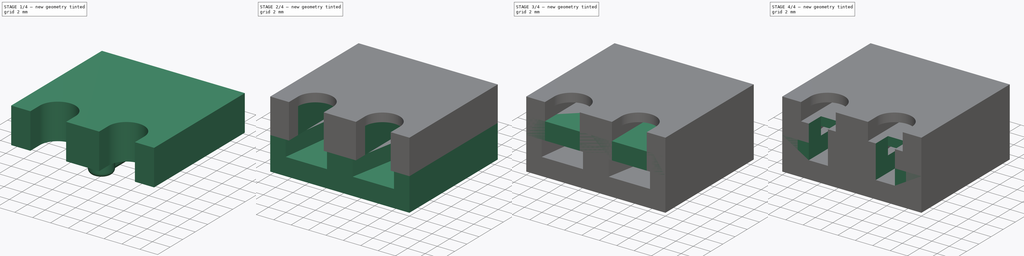
[diagram: build sequence overview — one tinted view per stage of 4, left to right]
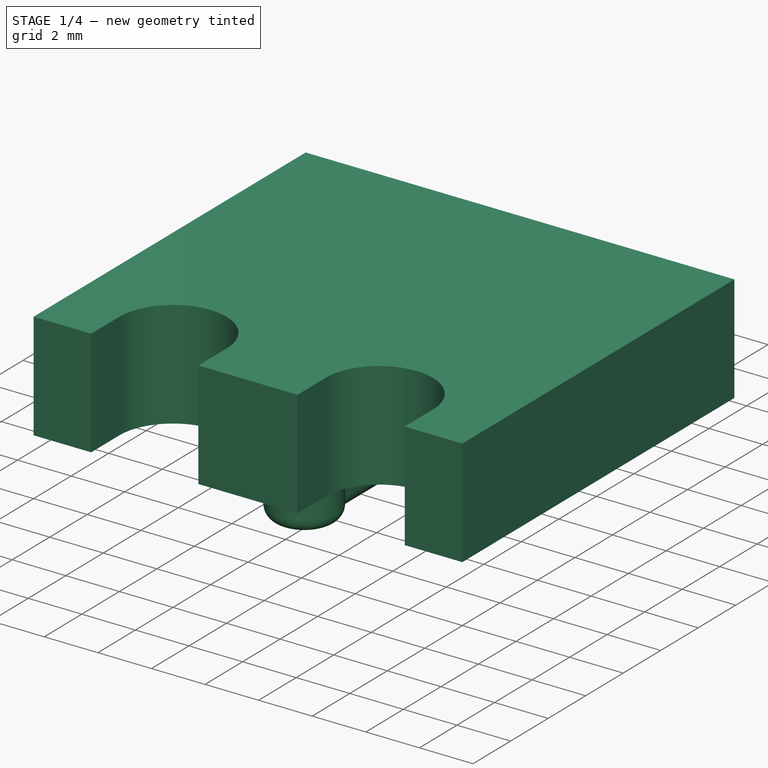
[diagram: stage 1 of 4 — iso view after this stage's code; geometry added in this stage tinted green]
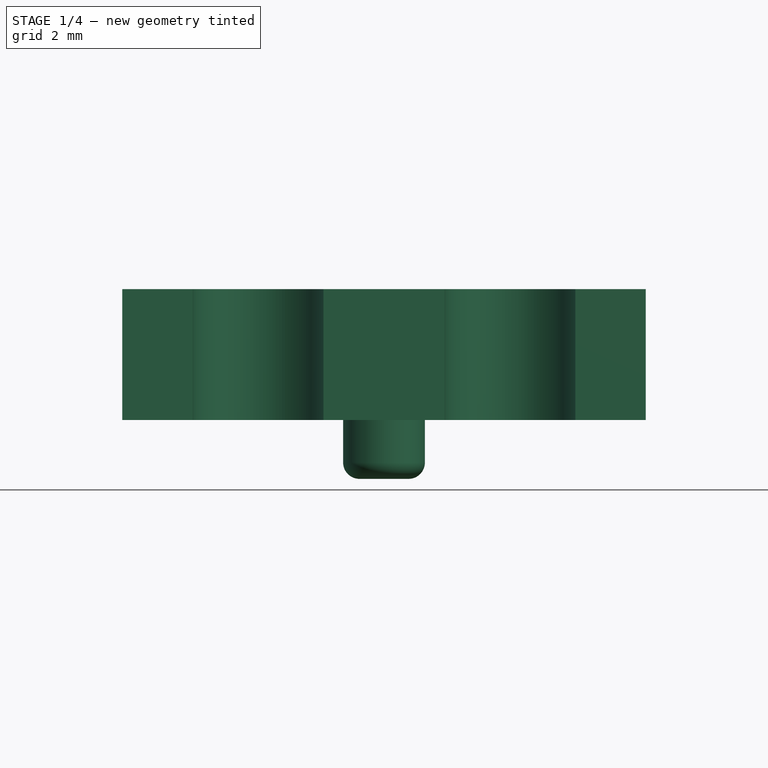
[diagram: stage 1 of 4 — front view after this stage's code; geometry added in this stage tinted green]
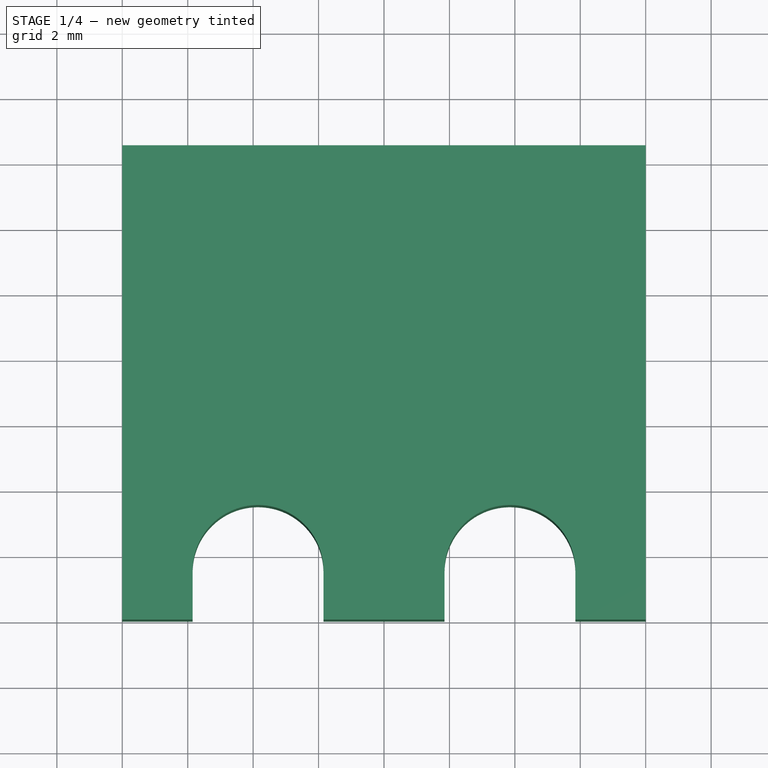
[diagram: stage 1 of 4 — top view after this stage's code; geometry added in this stage tinted green]
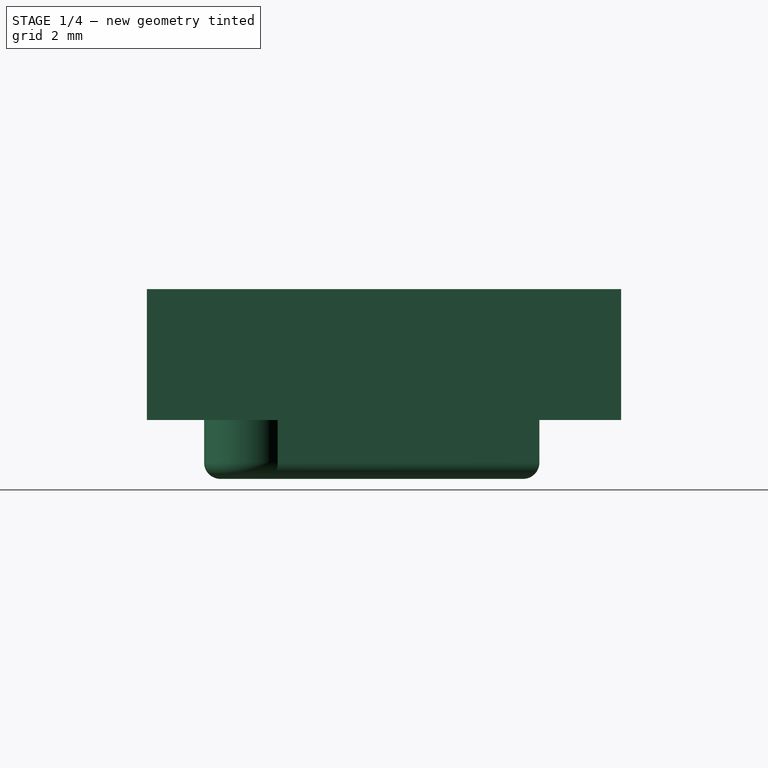
[diagram: stage 1 of 4 — right view after this stage's code; geometry added in this stage tinted green]
FCSTD DOCUMENT  (FreeCAD 2023.131R26244 +5365 (Git))
Label: Mini Blade Fuse Holder
License: All rights reserved
LicenseURL: http://en.wikipedia.org/wiki/All_rights_reserved
objects: Sketcher::SketchObject×12, PartDesign::Pad×6, PartDesign::Pocket×6, PartDesign::Body×4, PartDesign::Fillet×2, Spreadsheet::Sheet×1
note: 70 computed .brp shape members not serialized (recipe doc carries the construction recipe); baked Part::Feature solids carry a one-line shape summary decoded from their .brp

FEATURE [PartDesign::Body] Body002  label="Bottom Large Gauge"
  AutoGroupSolids = false
  ClaimAllChildren = false
  ExportMode = 0
  Group = -> [Sketch006,Pad003,Sketch007,Pocket003]
  InvalidShape = false
  Origin = -> Origin002
  Tip = -> Pocket003
  TreeRank = 27
  ValidateShape = true
  _ExportChildren = -> [Pad003,Pocket003]
  _GroupVersion = 1
FEATURE [Sketcher::SketchObject] Sketch008
  ArcFitTolerance = 1e-06
  AttachmentSupport = -> [XY_Plane003]
  ExternalBSplineMaxDegree = 5
  ExternalBSplineTolerance = 0.0001
  FullyConstrained = true
  InternalTolerance = 1e-06
  InvalidShape = false
  MakeInternals = false
  MapMode = 5
  Support = -> [XY_Plane003]
  TreeRank = 29
  ValidateShape = true
  expr: Constraints[10] = <<Parameters>>.connector_length
  expr: Constraints[8] = <<Parameters>>.width
  sketch-geometry (4):
    g0: LineSegment StartX=-8 StartY=0 StartZ=0 EndX=8 EndY=0 EndZ=0
    g1: LineSegment StartX=8 StartY=0 StartZ=0 EndX=8 EndY=14.5 EndZ=0
    g2: LineSegment StartX=8 StartY=14.5 StartZ=0 EndX=-8 EndY=14.5 EndZ=0
    g3: LineSegment StartX=-8 StartY=14.5 StartZ=0 EndX=-8 EndY=0 EndZ=0
  constraints (11):
    c: Coincident(g0,g1)
    c: Coincident(g1,g2)
    c: Coincident(g2,g3)
    c: Coincident(g3,g0)
    c: Horizontal(g0)
    c: Horizontal(g2)
    c: Vertical(g1)
    c: Vertical(g3)
    c: DistanceX(g0,g0) = 16
    c: Symmetric(g0,g0,g-1)
    c: DistanceY(g0,g1) = 14.5
FEATURE [PartDesign::Pad] Pad004
  AddSubType = 0
  AlongSketchNormal = false
  AutoTaperInnerAngle = true
  CheckUpToFaceLimits = true
  ClaimChildren = false
  Direction = (0,0,1)
  Fit = 0
  FitJoin = 0
  InnerFit = 0
  InnerFitJoin = 0
  InvalidShape = false
  Length = 4
  Length2 = 100
  Linearize = true
  NewSolid = false
  Profile = -> Sketch008
  Suppress = false
  TaperInnerAngle = 0
  TaperInnerAngleRev = 0
  TreeRank = 30
  Type = 0
  ValidateShape = true
  _ProfileBasedVersion = 1
  expr: Length = <<Parameters>>.thickness * 2
FEATURE [Sketcher::SketchObject] Sketch009
  ArcFitTolerance = 1e-06
  AttachmentSupport = -> [XY_Plane003]
  ExternalBSplineMaxDegree = 5
  ExternalBSplineTolerance = 0.0001
  FullyConstrained = true
  InternalTolerance = 1e-06
  InvalidShape = false
  MakeInternals = false
  MapMode = 5
  Support = -> [XY_Plane003]
  TreeRank = 31
  ValidateShape = true
  sketch-geometry (4):
    g0: ArcOfCircle CenterX=0 CenterY=3 CenterZ=0 NormalX=0 NormalY=0 NormalZ=1 AngleXU=0 Radius=1.25 StartAngle=2.2143 EndAngle=7.21048
    g1: LineSegment StartX=-0.75 StartY=4 StartZ=0 EndX=-0.75 EndY=12 EndZ=0
    g2: LineSegment StartX=0.75 StartY=4 StartZ=0 EndX=0.75 EndY=12 EndZ=0
    g3: LineSegment StartX=0.75 StartY=12 StartZ=0 EndX=-0.75 EndY=12 EndZ=0
  constraints (13):
    c: PointOnObject(g0,g-2)
    c: Vertical(g1)
    c: Vertical(g2)
    c: Coincident(g3,g2)
    c: Coincident(g3,g1)
    c: Horizontal(g3)
    c: Coincident(g0,g2)
    c: Coincident(g0,g1)
    c: DistanceY(g0,g0) = 0
    c: Diameter(g0) = 2.5
    c: DistanceX(g1,g2) = 1.5
    c: DistanceY(g0,g2) = 8
    c: DistanceY(g-1,g0) = 3
FEATURE [PartDesign::Pad] Pad005
  AddSubType = 0
  AlongSketchNormal = false
  AutoTaperInnerAngle = true
  BaseFeature = -> Pad004
  CheckUpToFaceLimits = true
  ClaimChildren = false
  Direction = (0,0,1)
  Fit = 0
  FitJoin = 0
  InnerFit = 0
  InnerFitJoin = 0
  InvalidShape = false
  Length = 1.8
  Length2 = 100
  Linearize = true
  NewSolid = false
  Profile = -> Sketch009
  Reversed = true
  Suppress = false
  TaperInnerAngle = 0
  TaperInnerAngleRev = 0
  TreeRank = 32
  Type = 0
  ValidateShape = true
  _ProfileBasedVersion = 1
  expr: Length = <<Parameters>>.spade_height
FEATURE [PartDesign::Fillet] Fillet001
  AddSubType = 0
  Base = -> Pad005 [Face11]
  BaseFeature = -> Pad005
  InvalidShape = false
  NewSolid = false
  Radius = 0.5
  SupportTransform = false
  Suppress = false
  TreeRank = 33
  ValidateShape = true
FEATURE [Sketcher::SketchObject] Sketch010
  ArcFitTolerance = 1e-06
  AttachmentSupport = -> [XY_Plane003]
  ExternalBSplineMaxDegree = 5
  ExternalBSplineTolerance = 0.0001
  FullyConstrained = false
  InternalTolerance = 1e-06
  InvalidShape = false
  MakeInternals = false
  MapMode = 5
  Support = -> [XY_Plane003]
  TreeRank = 34
  ValidateShape = true
  sketch-geometry (8):
    g0: ArcOfCircle CenterX=-3.85 CenterY=1.5 CenterZ=0 NormalX=0 NormalY=0 NormalZ=1 AngleXU=0 Radius=2 StartAngle=2e-16 EndAngle=3.14159
    g1: ArcOfCircle CenterX=3.85 CenterY=1.5 CenterZ=0 NormalX=0 NormalY=0 NormalZ=1 AngleXU=0 Radius=2 StartAngle=0 EndAngle=3.14159
    g2: LineSegment StartX=-5.85 StartY=1.5 StartZ=0 EndX=-5.85 EndY=-3.2814 EndZ=0
    g3: LineSegment StartX=-1.85 StartY=1.5 StartZ=0 EndX=-1.85 EndY=-3.2814 EndZ=0
    g4: LineSegment StartX=1.85 StartY=1.5 StartZ=0 EndX=1.85 EndY=-3.2814 EndZ=0
    g5: LineSegment StartX=5.85 StartY=1.5 StartZ=0 EndX=5.85 EndY=-3.2814 EndZ=0
    g6: LineSegment StartX=-5.85 StartY=-3.2814 StartZ=0 EndX=-1.85 EndY=-3.2814 EndZ=0
    g7: LineSegment StartX=1.85 StartY=-3.2814 StartZ=0 EndX=5.85 EndY=-3.2814 EndZ=0
  constraints (23):
    c: Symmetric(g0,g1,g-2)
    c: DistanceX(g0,g1) = 7.7
    c: Equal(g0,g1)
    c: Diameter(g0) = 4
    c: Vertical(g2)
    c: Vertical(g3)
    c: Vertical(g4)
    c: Vertical(g5)
    c: Coincident(g6,g2)
    c: Coincident(g6,g3)
    c: Coincident(g7,g4)
    c: Coincident(g7,g5)
    c: Horizontal(g6)
    c: Horizontal(g7)
    c: Coincident(g0,g3)
    c: Coincident(g0,g2)
    c: Tangent(g1,g4) = -1.5708
    c: DistanceY(g3,g4) = 0
    c: Coincident(g5,g1)
    c: DistanceY(g0,g0) = 0
    c: DistanceY(g0,g0) = 0
    c: DistanceY(g1,g1) = 0
    c: DistanceY(g-1,g0) = 1.5
FEATURE [PartDesign::Pocket] Pocket004
  AddSubType = 1
  AutoTaperInnerAngle = true
  BaseFeature = -> Fillet001
  CheckUpToFaceLimits = true
  ClaimChildren = false
  Fit = 0
  FitJoin = 0
  InnerFit = 0
  InnerFitJoin = 0
  InvalidShape = false
  Length = 100
  Length2 = 100
  Linearize = true
  NewSolid = false
  Profile = -> Sketch010
  Suppress = false
  TaperInnerAngle = 0
  TaperInnerAngleRev = 0
  TreeRank = 35
  Type = 4
  ValidateShape = true
  _ProfileBasedVersion = 1
  _Version = 1
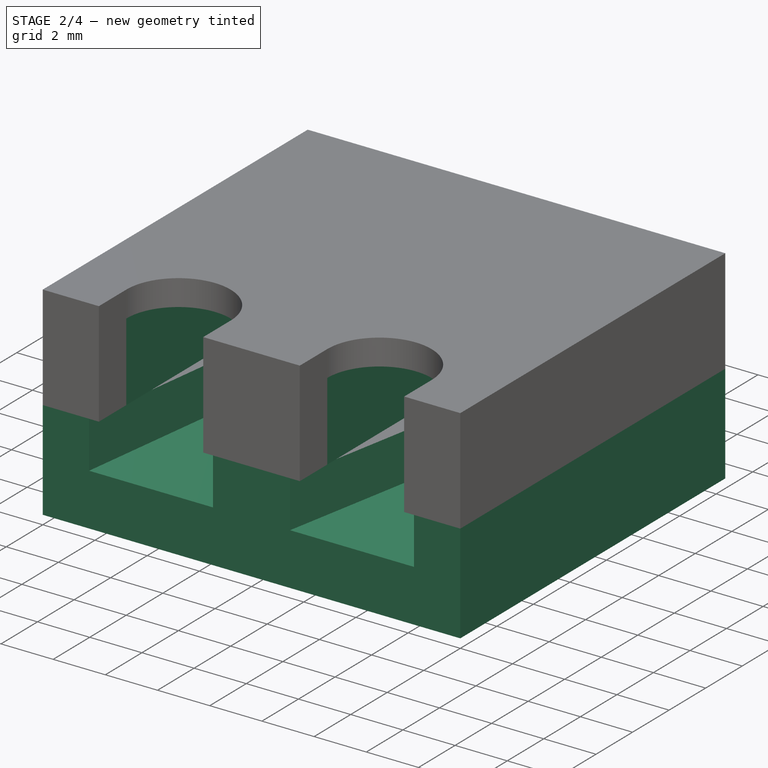
[diagram: stage 2 of 4 — iso view after this stage's code; geometry added in this stage tinted green]
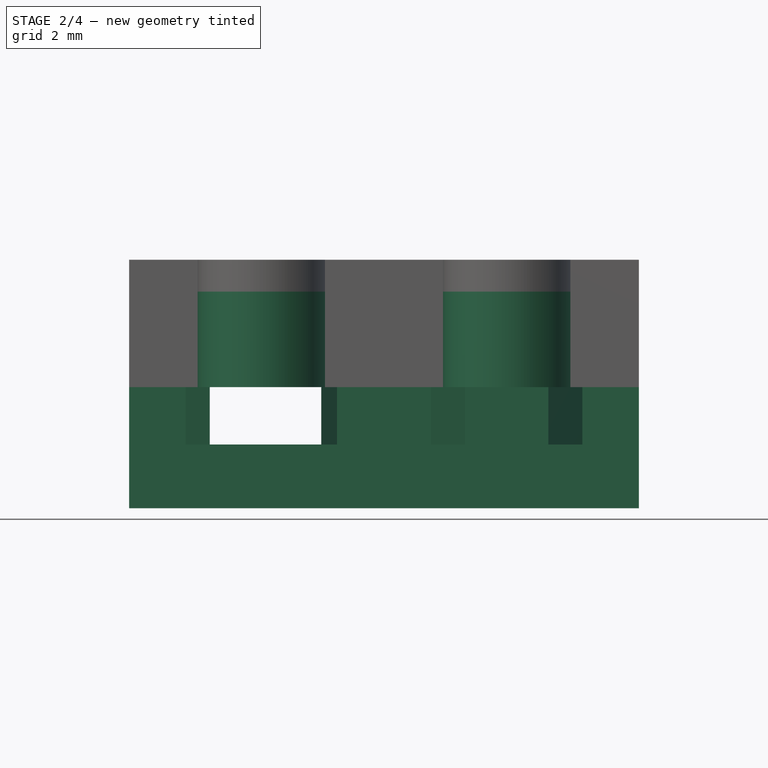
[diagram: stage 2 of 4 — front view after this stage's code; geometry added in this stage tinted green]
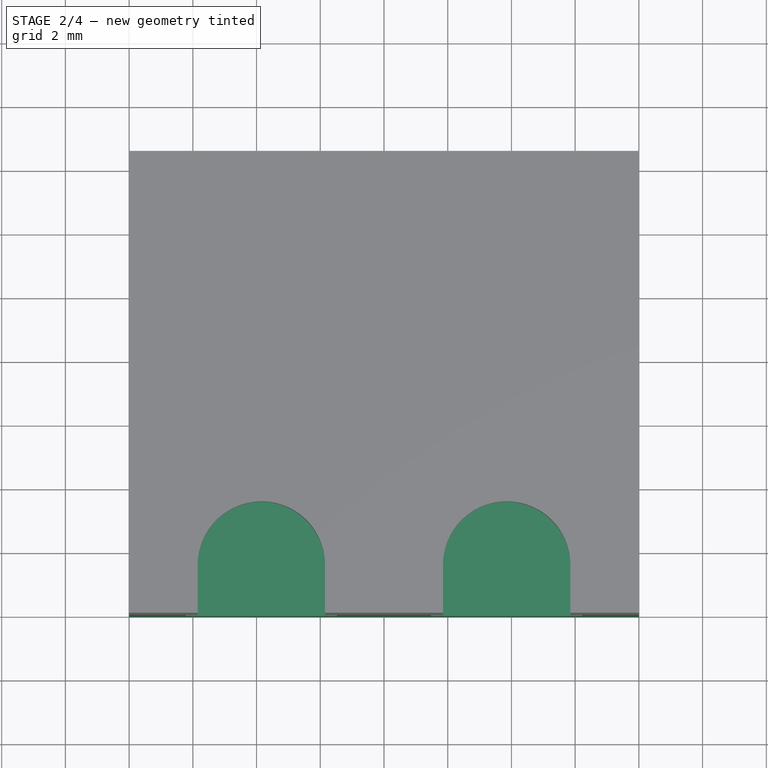
[diagram: stage 2 of 4 — top view after this stage's code; geometry added in this stage tinted green]
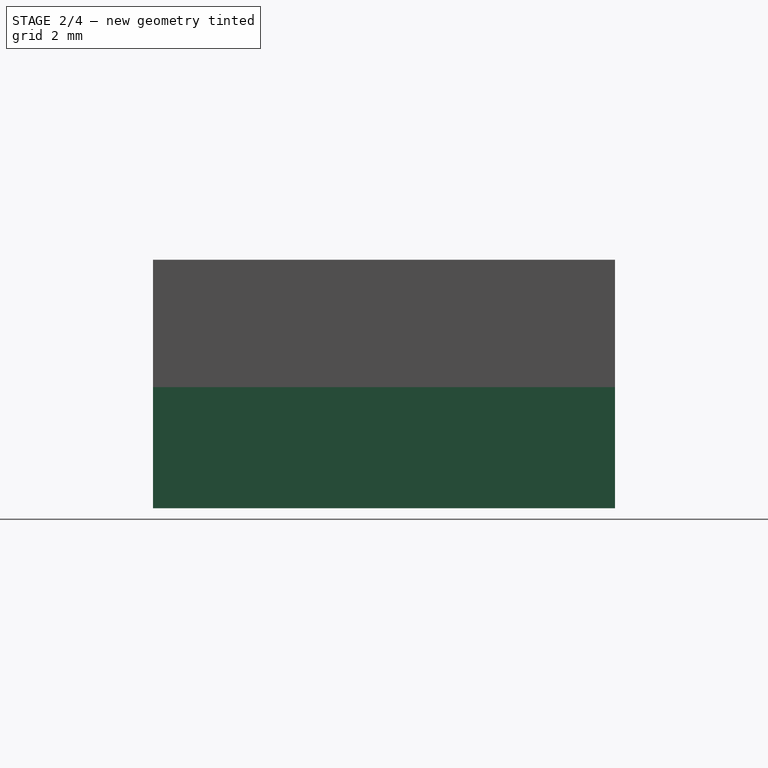
[diagram: stage 2 of 4 — right view after this stage's code; geometry added in this stage tinted green]
FEATURE [PartDesign::Body] Body001  label="Top Small Gauge"
  AutoGroupSolids = false
  ClaimAllChildren = false
  ExportMode = 0
  Group = -> [Sketch002,Pad001,Sketch003,Pad002,Fillet,Sketch004,Pocket001,Sketch005,Pocket002]
  InvalidShape = false
  Origin = -> Origin001
  Tip = -> Pocket002
  TreeRank = 26
  ValidateShape = true
  _ExportChildren = -> [Pad001,Pad002,Fillet,Pocket001,Pocket002]
  _GroupVersion = 1
FEATURE [Sketcher::SketchObject] Sketch006
  ArcFitTolerance = 1e-06
  AttachmentSupport = -> [XY_Plane002]
  ExternalBSplineMaxDegree = 5
  ExternalBSplineTolerance = 0.0001
  FullyConstrained = true
  InternalTolerance = 1e-06
  InvalidShape = false
  MakeInternals = false
  MapMode = 5
  Support = -> [XY_Plane002]
  TreeRank = 12
  ValidateShape = true
  expr: Constraints[10] = <<Parameters>>.width
  expr: Constraints[9] = <<Parameters>>.connector_length
  sketch-geometry (4):
    g0: LineSegment StartX=-8 StartY=0 StartZ=0 EndX=8 EndY=0 EndZ=0
    g1: LineSegment StartX=8 StartY=0 StartZ=0 EndX=8 EndY=14.5 EndZ=0
    g2: LineSegment StartX=8 StartY=14.5 StartZ=0 EndX=-8 EndY=14.5 EndZ=0
    g3: LineSegment StartX=-8 StartY=14.5 StartZ=0 EndX=-8 EndY=0 EndZ=0
  constraints (11):
    c: Coincident(g0,g1)
    c: Coincident(g1,g2)
    c: Coincident(g2,g3)
    c: Coincident(g3,g0)
    c: Horizontal(g0)
    c: Horizontal(g2)
    c: Vertical(g1)
    c: Vertical(g3)
    c: Symmetric(g0,g0,g-1)
    c: DistanceY(g0,g1) = 14.5
    c: DistanceX(g0,g0) = 16
FEATURE [PartDesign::Pad] Pad003
  AddSubType = 0
  AlongSketchNormal = false
  AutoTaperInnerAngle = true
  CheckUpToFaceLimits = true
  ClaimChildren = false
  Direction = (0,0,1)
  Fit = 0
  FitJoin = 0
  InnerFit = 0
  InnerFitJoin = 0
  InvalidShape = false
  Length = 3.8
  Length2 = 100
  Linearize = true
  NewSolid = false
  Profile = -> Sketch006
  Reversed = true
  Suppress = false
  TaperInnerAngle = 0
  TaperInnerAngleRev = 0
  TreeRank = 13
  Type = 0
  ValidateShape = true
  _ProfileBasedVersion = 1
  expr: Length = <<Parameters>>.spade_height + <<Parameters>>.thickness
FEATURE [Sketcher::SketchObject] Sketch007
  ArcFitTolerance = 1e-06
  AttachmentSupport = -> [XY_Plane002]
  ExternalBSplineMaxDegree = 5
  ExternalBSplineTolerance = 0.0001
  FullyConstrained = false
  InternalTolerance = 1e-06
  InvalidShape = false
  MakeInternals = false
  MapMode = 5
  Support = -> [XY_Plane002]
  TreeRank = 14
  ValidateShape = true
  expr: Constraints[16] = <<Parameters>>.connector_length
  expr: Constraints[17] = <<Parameters>>.spade_width
  expr: Constraints[18] = <<Parameters>>.spade_length
  expr: Constraints[20] = <<Parameters>>.wire_holder_length
  expr: Constraints[43] = <<Parameters>>.fuse_blade_distance
  sketch-geometry (22):
    g0: LineSegment StartX=-5.57963 StartY=14.5 StartZ=0 EndX=-5.57963 EndY=9 EndZ=0
    g1: LineSegment StartX=-5.57963 StartY=9 StartZ=0 EndX=-5.47022 EndY=5.75 EndZ=0
    g2: LineSegment StartX=-5.47022 StartY=5.75 StartZ=0 EndX=-6.225 EndY=0 EndZ=0
    g3: LineSegment StartX=-6.225 StartY=0 StartZ=0 EndX=-1.475 EndY=0 EndZ=0
    g4: LineSegment StartX=-1.475 StartY=0 StartZ=0 EndX=-1.97022 EndY=5.77814 EndZ=0
    g5: LineSegment StartX=-1.97022 StartY=5.77814 StartZ=0 EndX=-1.52963 EndY=9 EndZ=0
    g6: LineSegment StartX=-1.52963 StartY=9 StartZ=0 EndX=-1.52963 EndY=14.5 EndZ=0
    g7: LineSegment StartX=-5.57963 StartY=14.5 StartZ=0 EndX=-1.52963 EndY=14.5 EndZ=0
    g8: LineSegment StartX=1.475 StartY=0 StartZ=0 EndX=2.54126 EndY=5.70046 EndZ=0
    g9: LineSegment StartX=6.225 StartY=0 StartZ=0 EndX=5.15888 EndY=5.70049 EndZ=0
    g10: LineSegment StartX=1.475 StartY=0 StartZ=0 EndX=6.225 EndY=0 EndZ=0
    g11: LineSegment StartX=2.54126 StartY=5.70046 StartZ=0 EndX=1.82513 EndY=8.87247 EndZ=0
    g12: LineSegment StartX=5.15888 StartY=5.70049 StartZ=0 EndX=5.87513 EndY=8.87247 EndZ=0
    g13: LineSegment StartX=5.87513 StartY=8.87247 StartZ=0 EndX=5.87513 EndY=14.3725 EndZ=0
    g14: LineSegment StartX=1.82513 StartY=8.87247 StartZ=0 EndX=1.82513 EndY=14.3725 EndZ=0
    g15: LineSegment StartX=1.82513 StartY=14.3725 StartZ=0 EndX=5.87513 EndY=14.3725 EndZ=0
    g16: GeomPoint [constr] X=-3.85 Y=0 Z=0
    g17: GeomPoint [constr] X=3.85 Y=0 Z=0
    g18: ArcOfCircle CenterX=0 CenterY=3 CenterZ=0 NormalX=0 NormalY=0 NormalZ=1 AngleXU=0 Radius=1.25 StartAngle=2.2143 EndAngle=7.21048
    g19: LineSegment StartX=-0.75 StartY=4 StartZ=0 EndX=-0.75 EndY=12 EndZ=0
    g20: LineSegment StartX=0.75 StartY=4 StartZ=0 EndX=0.75 EndY=12 EndZ=0
    g21: LineSegment StartX=0.75 StartY=12 StartZ=0 EndX=-0.75 EndY=12 EndZ=0
  constraints (59):
    c: Vertical(g0)
    c: Coincident(g1,g0)
    c: Coincident(g2,g1)
    c: Coincident(g3,g2)
    c: Horizontal(g3)
    c: Coincident(g4,g3)
    c: Coincident(g5,g4)
    c: Coincident(g6,g5)
    c: Vertical(g6)
    c: Coincident(g7,g0)
    c: Coincident(g7,g6)
    c: Horizontal(g7)
    c: PointOnObject(g3,g-1)
    c: Equal(g0,g6)
    c: Equal(g1,g5)
    c: Equal(g2,g4)
    c: DistanceY(g-1,g6) = 14.5
    c: DistanceX(g0,g6) = 4.05
    c: DistanceY(g0,g0) = 5.5
    c: DistanceX(g1,g4) = 3.5
    c: DistanceY(g2,g1) = 5.75
    c: Coincident(g10,g8)
    c: Coincident(g10,g9)
    c: Horizontal(g10)
    c: Coincident(g11,g8)
    c: Coincident(g12,g9)
    c: Coincident(g13,g12)
    c: Vertical(g13)
    c: Coincident(g14,g11)
    c: Vertical(g14)
    c: Coincident(g15,g14)
    c: Coincident(g15,g13)
    c: Horizontal(g15)
    c: Equal(g7,g15)
    c: Equal(g0,g14)
    c: Equal(g6,g13)
    c: Equal(g1,g11)
    c: Equal(g5,g12)
    c: Equal(g2,g8)
    c: Equal(g4,g9)
    c: Equal(g3,g10)
    c: Symmetric(g2,g3,g16)
    c: Symmetric(g8,g9,g17)
    c: DistanceX(g16,g17) = 7.7
    c: Symmetric(g3,g8,g-1)
    c: PointOnObject(g18,g-2)
    c: Diameter(g18) = 2.5
    c: Vertical(g19)
    c: Vertical(g20)
    c: Coincident(g21,g20)
    c: Coincident(g21,g19)
    c: DistanceY(g20,g20) = 8
    c: DistanceX(g19,g20) = 1.5
    c: DistanceY(g-1,g18) = 3
    c: Horizontal(g21)
    c: Coincident(g18,g20)
    c: Coincident(g18,g19)
    c: DistanceY(g18,g18) = 0
    c: DistanceX(g2,g3) = 4.75
FEATURE [PartDesign::Pocket] Pocket003
  AddSubType = 1
  AutoTaperInnerAngle = true
  BaseFeature = -> Pad003
  CheckUpToFaceLimits = true
  ClaimChildren = false
  Fit = 0
  FitJoin = 0
  InnerFit = 0
  InnerFitJoin = 0
  InvalidShape = false
  Length = 1.8
  Length2 = 100
  Linearize = true
  NewSolid = false
  Profile = -> Sketch007
  Suppress = false
  TaperInnerAngle = 0
  TaperInnerAngleRev = 0
  TreeRank = 15
  Type = 0
  ValidateShape = true
  _ProfileBasedVersion = 1
  _Version = 1
  expr: Length = <<Parameters>>.spade_height
FEATURE [Sketcher::SketchObject] Sketch011
  ArcFitTolerance = 1e-06
  AttachmentSupport = -> [XY_Plane003]
  ExternalBSplineMaxDegree = 5
  ExternalBSplineTolerance = 0.0001
  FullyConstrained = false
  InternalTolerance = 1e-06
  InvalidShape = false
  MakeInternals = false
  MapMode = 5
  Support = -> [XY_Plane003]
  TreeRank = 36
  ValidateShape = true
  expr: Constraints[6] = <<Parameters>>.wire_holder_width
  expr: Constraints[7] = <<Parameters>>.fuse_blade_distance
  sketch-geometry (10):
    g0: ArcOfCircle CenterX=-3.85 CenterY=-0.720417 CenterZ=0 NormalX=0 NormalY=0 NormalZ=1 AngleXU=0 Radius=2 StartAngle=3.14159 EndAngle=6.28319
    g1: ArcOfCircle CenterX=3.85 CenterY=-0.720417 CenterZ=0 NormalX=0 NormalY=0 NormalZ=1 AngleXU=0 Radius=2 StartAngle=3.14159 EndAngle=6.28319
    g2: LineSegment [constr] StartX=-4.95 StartY=-2.39075 StartZ=0 EndX=-2.75 EndY=-2.39075 EndZ=0
    g3: ArcOfCircle CenterX=-3.85 CenterY=8.01764 CenterZ=0 NormalX=0 NormalY=0 NormalZ=1 AngleXU=0 Radius=2 StartAngle=3.74793e-08 EndAngle=3.14159
    g4: ArcOfCircle CenterX=3.85 CenterY=8.01764 CenterZ=0 NormalX=0 NormalY=0 NormalZ=1 AngleXU=0 Radius=2 StartAngle=6.28319 EndAngle=9.42478
    g5: LineSegment StartX=-5.85 StartY=-0.720417 StartZ=0 EndX=-5.85 EndY=8.01764 EndZ=0
    g6: LineSegment StartX=5.85 StartY=-0.720417 StartZ=0 EndX=5.85 EndY=8.01764 EndZ=0
    g7: LineSegment StartX=1.85 StartY=-0.720417 StartZ=0 EndX=1.85 EndY=8.01764 EndZ=0
    g8: LineSegment StartX=-1.85 StartY=-0.720417 StartZ=0 EndX=-1.85 EndY=8.01764 EndZ=0
    g9: LineSegment [constr] StartX=-4.11501 StartY=10 StartZ=0 EndX=3.62358 EndY=10.0048 EndZ=0
  constraints (28):
    c: Diameter(g0) = 4
    c: Equal(g0,g1)
    c: Symmetric(g0,g1,g-2)
    c: PointOnObject(g2,g0)
    c: PointOnObject(g2,g0)
    c: Horizontal(g2)
    c: DistanceX(g2,g2) = 2.2
    c: DistanceX(g0,g1) = 7.7
    c: Equal(g0,g3)
    c: Equal(g0,g4)
    c: Symmetric(g3,g4,g-2)
    c: Vertical(g6)
    c: Equal(g5,g7)
    c: Tangent(g3,g5) = 1.5708
    c: Coincident(g3,g8)
    c: Coincident(g0,g8)
    c: Coincident(g0,g5)
    c: Coincident(g4,g7)
    c: Coincident(g1,g6)
    c: Tangent(g1,g7) = 1.5708
    c: DistanceY(g0,g0) = 0
    c: DistanceY(g1,g1) = 0
    c: Coincident(g4,g6)
    c: Vertical(g8)
    c: Vertical(g5)
    c: PointOnObject(g9,g3)
    c: PointOnObject(g9,g4)
    c: DistanceY(g-1,g9) = 10
FEATURE [PartDesign::Pocket] Pocket005
  AddSubType = 1
  AutoTaperInnerAngle = true
  BaseFeature = -> Pocket004
  CheckUpToFaceLimits = true
  ClaimChildren = false
  Fit = 0
  FitJoin = 0
  InnerFit = 0
  InnerFitJoin = 0
  InvalidShape = false
  Length = 3
  Length2 = 100
  Linearize = true
  NewSolid = false
  Profile = -> Sketch011
  Reversed = true
  Suppress = false
  TaperInnerAngle = 0
  TaperInnerAngleRev = 0
  TreeRank = 37
  Type = 0
  ValidateShape = true
  _ProfileBasedVersion = 1
  _Version = 1
  expr: Length = <<Parameters>>.thickness / 2 * 3
FEATURE [PartDesign::Body] Body003  label="Top Large Gauge"
  AutoGroupSolids = false
  ClaimAllChildren = false
  ExportMode = 0
  Group = -> [Sketch008,Pad004,Sketch009,Pad005,Fillet001,Sketch010,Pocket004,Sketch011,Pocket005]
  InvalidShape = false
  Origin = -> Origin003
  Tip = -> Pocket005
  TreeRank = 38
  ValidateShape = true
  _ExportChildren = -> [Pad004,Pad005,Fillet001,Pocket004,Pocket005]
  _GroupVersion = 1
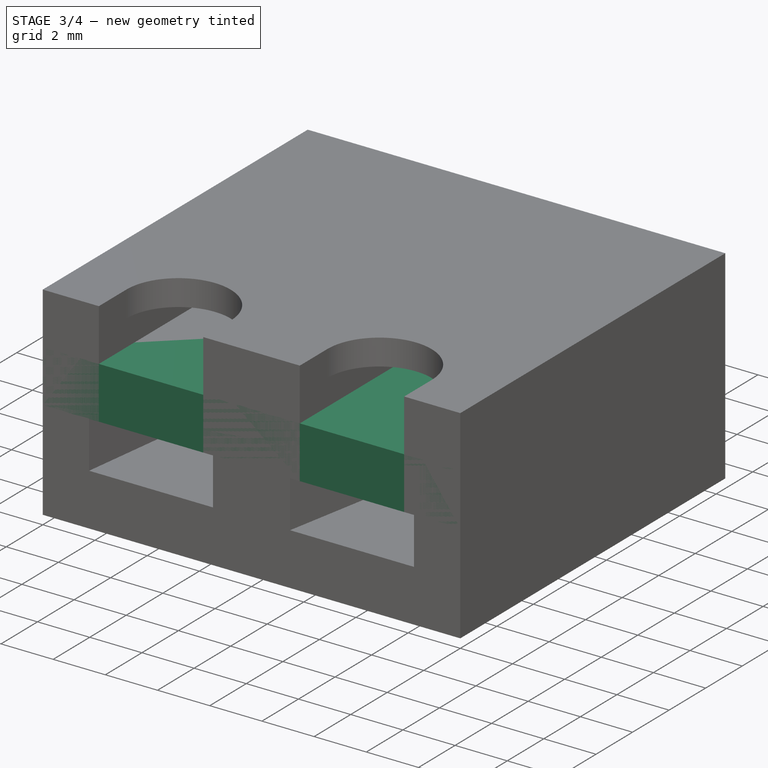
[diagram: stage 3 of 4 — iso view after this stage's code; geometry added in this stage tinted green]
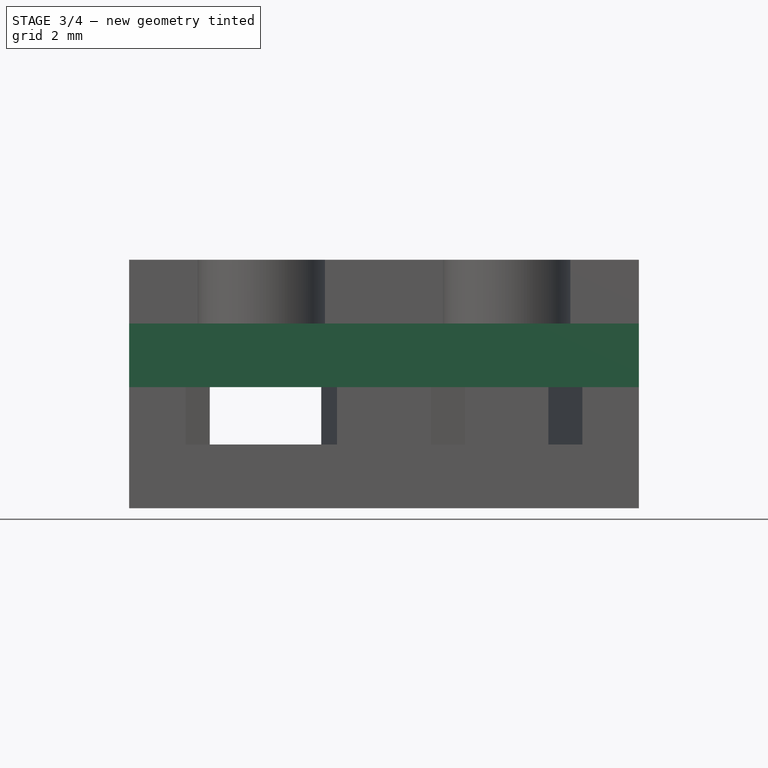
[diagram: stage 3 of 4 — front view after this stage's code; geometry added in this stage tinted green]
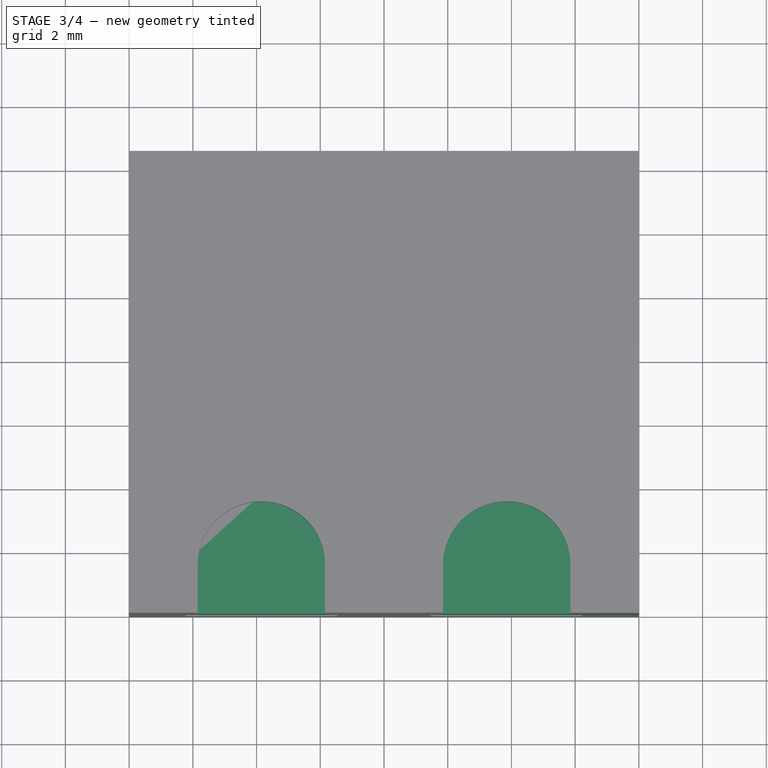
[diagram: stage 3 of 4 — top view after this stage's code; geometry added in this stage tinted green]
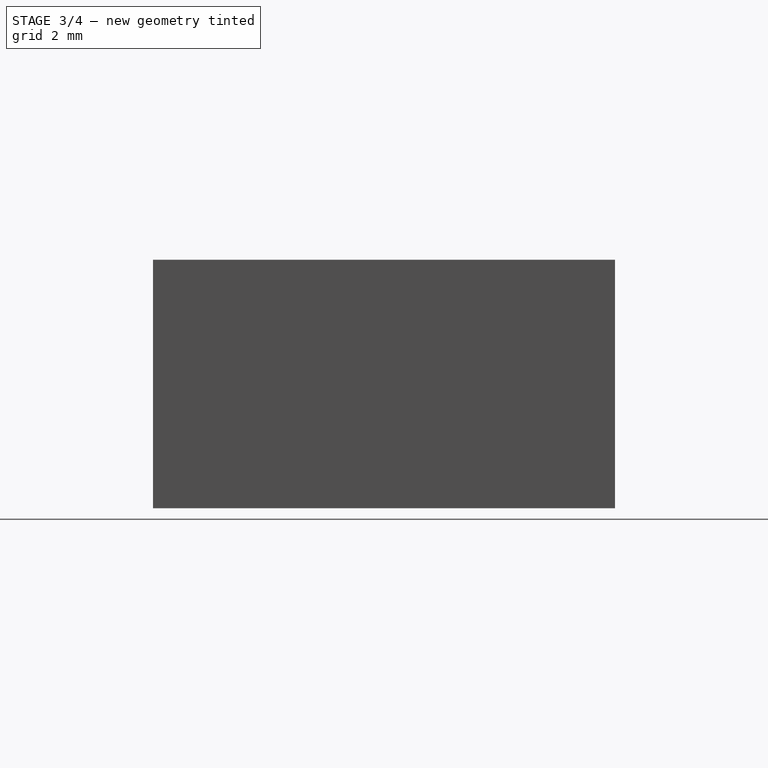
[diagram: stage 3 of 4 — right view after this stage's code; geometry added in this stage tinted green]
FEATURE [PartDesign::Body] Body  label="Bottom Small Gauge"
  AutoGroupSolids = false
  ClaimAllChildren = false
  ExportMode = 0
  Group = -> [Sketch,Pad,Sketch001,Pocket]
  InvalidShape = false
  Origin = -> Origin
  Tip = -> Pocket
  TreeRank = 11
  ValidateShape = true
  _ExportChildren = -> [Pad,Pocket]
  _GroupVersion = 1
FEATURE [Sketcher::SketchObject] Sketch002
  ArcFitTolerance = 1e-06
  AttachmentSupport = -> [XY_Plane001]
  ExternalBSplineMaxDegree = 5
  ExternalBSplineTolerance = 0.0001
  FullyConstrained = true
  InternalTolerance = 1e-06
  InvalidShape = false
  MakeInternals = false
  MapMode = 5
  Support = -> [XY_Plane001]
  TreeRank = 29
  ValidateShape = true
  expr: Constraints[10] = <<Parameters>>.connector_length
  expr: Constraints[8] = <<Parameters>>.width
  sketch-geometry (4):
    g0: LineSegment StartX=-8 StartY=0 StartZ=0 EndX=8 EndY=0 EndZ=0
    g1: LineSegment StartX=8 StartY=0 StartZ=0 EndX=8 EndY=14.5 EndZ=0
    g2: LineSegment StartX=8 StartY=14.5 StartZ=0 EndX=-8 EndY=14.5 EndZ=0
    g3: LineSegment StartX=-8 StartY=14.5 StartZ=0 EndX=-8 EndY=0 EndZ=0
  constraints (11):
    c: Coincident(g0,g1)
    c: Coincident(g1,g2)
    c: Coincident(g2,g3)
    c: Coincident(g3,g0)
    c: Horizontal(g0)
    c: Horizontal(g2)
    c: Vertical(g1)
    c: Vertical(g3)
    c: DistanceX(g0,g0) = 16
    c: Symmetric(g0,g0,g-1)
    c: DistanceY(g0,g1) = 14.5
FEATURE [PartDesign::Pad] Pad001
  AddSubType = 0
  AlongSketchNormal = false
  AutoTaperInnerAngle = true
  CheckUpToFaceLimits = true
  ClaimChildren = false
  Direction = (0,0,1)
  Fit = 0
  FitJoin = 0
  InnerFit = 0
  InnerFitJoin = 0
  InvalidShape = false
  Length = 2
  Length2 = 100
  Linearize = true
  NewSolid = false
  Profile = -> Sketch002
  Suppress = false
  TaperInnerAngle = 0
  TaperInnerAngleRev = 0
  TreeRank = 30
  Type = 0
  ValidateShape = true
  _ProfileBasedVersion = 1
  expr: Length = <<Parameters>>.thickness
FEATURE [Sketcher::SketchObject] Sketch003
  ArcFitTolerance = 1e-06
  AttachmentSupport = -> [XY_Plane001]
  ExternalBSplineMaxDegree = 5
  ExternalBSplineTolerance = 0.0001
  FullyConstrained = true
  InternalTolerance = 1e-06
  InvalidShape = false
  MakeInternals = false
  MapMode = 5
  Support = -> [XY_Plane001]
  TreeRank = 31
  ValidateShape = true
  sketch-geometry (4):
    g0: ArcOfCircle CenterX=0 CenterY=3 CenterZ=0 NormalX=0 NormalY=0 NormalZ=1 AngleXU=0 Radius=1.25 StartAngle=2.2143 EndAngle=7.21048
    g1: LineSegment StartX=-0.75 StartY=4 StartZ=0 EndX=-0.75 EndY=12 EndZ=0
    g2: LineSegment StartX=0.75 StartY=4 StartZ=0 EndX=0.75 EndY=12 EndZ=0
    g3: LineSegment StartX=0.75 StartY=12 StartZ=0 EndX=-0.75 EndY=12 EndZ=0
  constraints (13):
    c: PointOnObject(g0,g-2)
    c: Vertical(g1)
    c: Vertical(g2)
    c: Coincident(g3,g2)
    c: Coincident(g3,g1)
    c: Horizontal(g3)
    c: Coincident(g0,g2)
    c: Coincident(g0,g1)
    c: DistanceY(g0,g0) = 0
    c: Diameter(g0) = 2.5
    c: DistanceX(g1,g2) = 1.5
    c: DistanceY(g0,g2) = 8
    c: DistanceY(g-1,g0) = 3
FEATURE [PartDesign::Pad] Pad002
  AddSubType = 0
  AlongSketchNormal = false
  AutoTaperInnerAngle = true
  BaseFeature = -> Pad001
  CheckUpToFaceLimits = true
  ClaimChildren = false
  Direction = (0,0,1)
  Fit = 0
  FitJoin = 0
  InnerFit = 0
  InnerFitJoin = 0
  InvalidShape = false
  Length = 1.8
  Length2 = 100
  Linearize = true
  NewSolid = false
  Profile = -> Sketch003
  Reversed = true
  Suppress = false
  TaperInnerAngle = 0
  TaperInnerAngleRev = 0
  TreeRank = 32
  Type = 0
  ValidateShape = true
  _ProfileBasedVersion = 1
  expr: Length = <<Parameters>>.spade_height
FEATURE [PartDesign::Fillet] Fillet
  AddSubType = 0
  Base = -> Pad002 [Face11]
  BaseFeature = -> Pad002
  InvalidShape = false
  NewSolid = false
  Radius = 0.5
  SupportTransform = false
  Suppress = false
  TreeRank = 33
  ValidateShape = true
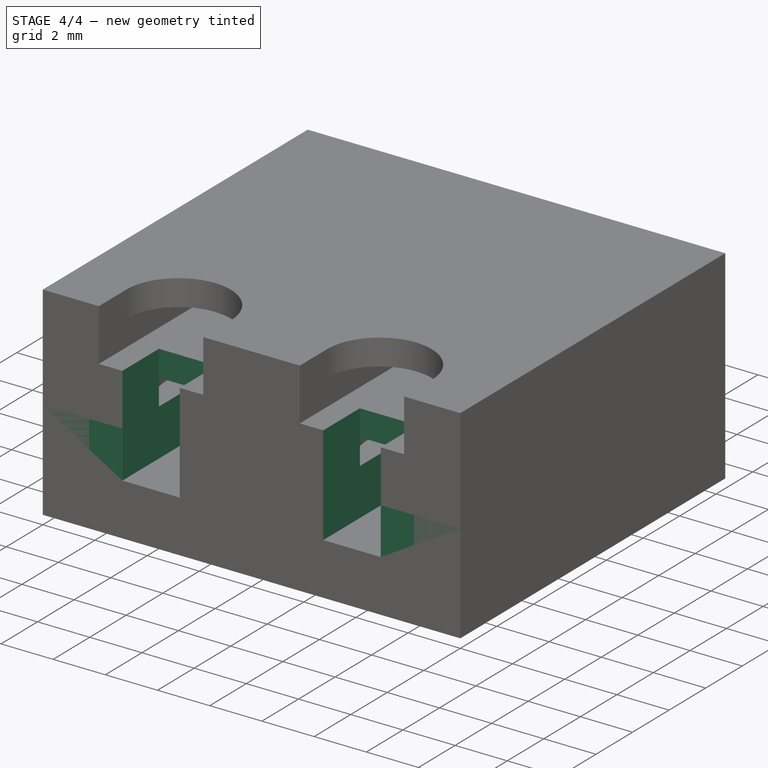
[diagram: stage 4 of 4 — iso view after this stage's code; geometry added in this stage tinted green]
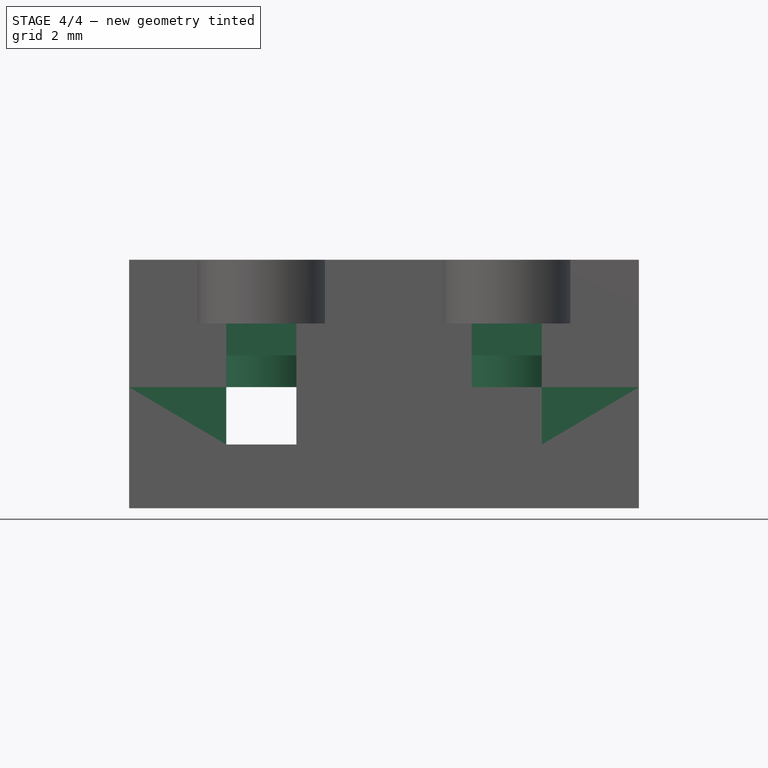
[diagram: stage 4 of 4 — front view after this stage's code; geometry added in this stage tinted green]
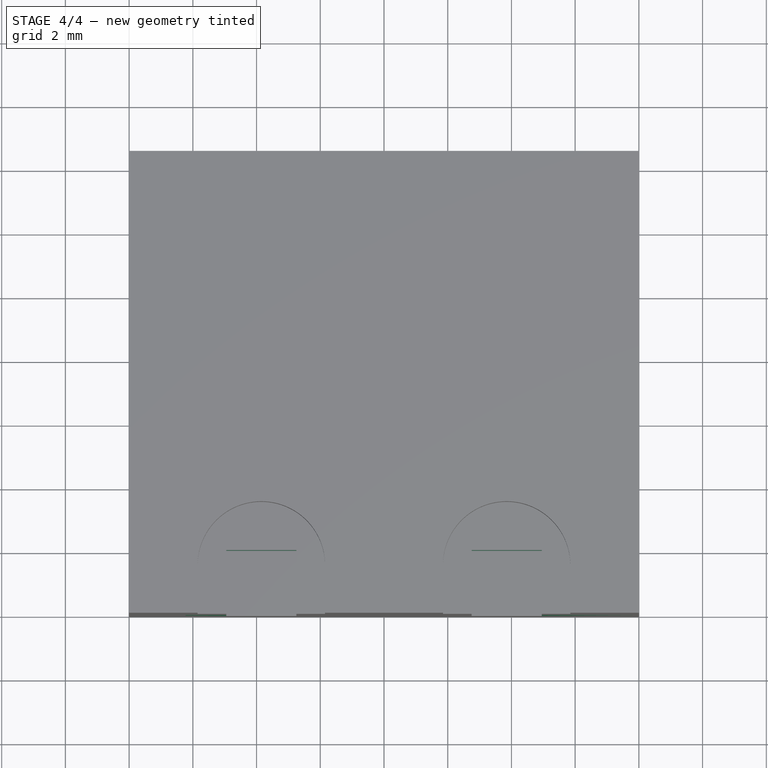
[diagram: stage 4 of 4 — top view after this stage's code; geometry added in this stage tinted green]
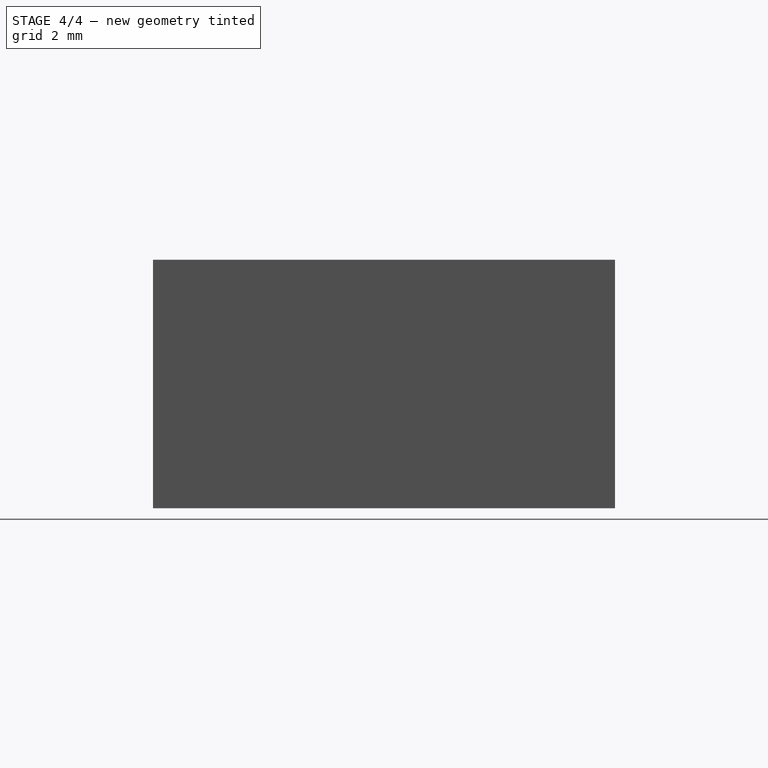
[diagram: stage 4 of 4 — right view after this stage's code; geometry added in this stage tinted green]
FEATURE [Spreadsheet::Sheet] Spreadsheet  label="Parameters"
  PythonMode = false
  ShowCells = 0
  TreeRank = 1
  cells = A1=Thickness; B1(thickness)=2; A2=Width; B2(width)=16; A4=Connector Length; B4(connector_length)=14.5; A5=Spade Width; B5(spade_width)=4.05; A6=Spade Height; B6(spade_height)=1.8; A7=Spade Length; B7(spade_length)=5.5; A8=Shoulder Length; B8(shoulder_length)=3.25; A9=Wire Holder Width; B9(wire_holder_width)=2.2; A10=Wire Holder Length; B10(wire_holder_length)=5.75; A11=Wire Tab Length; B11(wire_tab_length)=2; A13=Fuse Blade Distance; B13(fuse_blade_distance)==10.5 - 2.8; A14=Fuse Blade Length; B14(fuse_blade_length)=7.5
FEATURE [Sketcher::SketchObject] Sketch
  ArcFitTolerance = 1e-06
  AttachmentSupport = -> [XY_Plane]
  ExternalBSplineMaxDegree = 5
  ExternalBSplineTolerance = 0.0001
  FullyConstrained = true
  InternalTolerance = 1e-06
  InvalidShape = false
  MakeInternals = false
  MapMode = 5
  Support = -> [XY_Plane]
  TreeRank = 12
  ValidateShape = true
  expr: Constraints[10] = <<Parameters>>.width
  expr: Constraints[9] = <<Parameters>>.connector_length
  sketch-geometry (4):
    g0: LineSegment StartX=-8 StartY=0 StartZ=0 EndX=8 EndY=0 EndZ=0
    g1: LineSegment StartX=8 StartY=0 StartZ=0 EndX=8 EndY=14.5 EndZ=0
    g2: LineSegment StartX=8 StartY=14.5 StartZ=0 EndX=-8 EndY=14.5 EndZ=0
    g3: LineSegment StartX=-8 StartY=14.5 StartZ=0 EndX=-8 EndY=0 EndZ=0
  constraints (11):
    c: Coincident(g0,g1)
    c: Coincident(g1,g2)
    c: Coincident(g2,g3)
    c: Coincident(g3,g0)
    c: Horizontal(g0)
    c: Horizontal(g2)
    c: Vertical(g1)
    c: Vertical(g3)
    c: Symmetric(g0,g0,g-1)
    c: DistanceY(g0,g1) = 14.5
    c: DistanceX(g0,g0) = 16
FEATURE [PartDesign::Pad] Pad
  AddSubType = 0
  AlongSketchNormal = false
  AutoTaperInnerAngle = true
  CheckUpToFaceLimits = true
  ClaimChildren = false
  Direction = (0,0,1)
  Fit = 0
  FitJoin = 0
  InnerFit = 0
  InnerFitJoin = 0
  InvalidShape = false
  Length = 3.8
  Length2 = 100
  Linearize = true
  NewSolid = false
  Profile = -> Sketch
  Reversed = true
  Suppress = false
  TaperInnerAngle = 0
  TaperInnerAngleRev = 0
  TreeRank = 13
  Type = 0
  ValidateShape = true
  _ProfileBasedVersion = 1
  expr: Length = <<Parameters>>.spade_height + <<Parameters>>.thickness
FEATURE [Sketcher::SketchObject] Sketch001
  ArcFitTolerance = 1e-06
  AttachmentSupport = -> [XY_Plane]
  ExternalBSplineMaxDegree = 5
  ExternalBSplineTolerance = 0.0001
  FullyConstrained = true
  InternalTolerance = 1e-06
  InvalidShape = false
  MakeInternals = false
  MapMode = 5
  Support = -> [XY_Plane]
  TreeRank = 14
  ValidateShape = true
  expr: Constraints[18] = <<Parameters>>.connector_length
  expr: Constraints[19] = <<Parameters>>.spade_width
  expr: Constraints[20] = <<Parameters>>.spade_length
  expr: Constraints[21] = <<Parameters>>.wire_holder_width
  expr: Constraints[22] = <<Parameters>>.wire_holder_length
  expr: Constraints[47] = <<Parameters>>.fuse_blade_distance
  sketch-geometry (22):
    g0: LineSegment StartX=-5.875 StartY=14.5 StartZ=0 EndX=-5.875 EndY=9 EndZ=0
    g1: LineSegment StartX=-5.875 StartY=9 StartZ=0 EndX=-4.95 EndY=5.75 EndZ=0
    g2: LineSegment StartX=-4.95 StartY=5.75 StartZ=0 EndX=-4.95 EndY=0 EndZ=0
    g3: LineSegment StartX=-4.95 StartY=0 StartZ=0 EndX=-2.75 EndY=0 EndZ=0
    g4: LineSegment StartX=-2.75 StartY=0 StartZ=0 EndX=-2.75 EndY=5.75 EndZ=0
    g5: LineSegment StartX=-2.75 StartY=5.75 StartZ=0 EndX=-1.825 EndY=9 EndZ=0
    g6: LineSegment StartX=-1.825 StartY=9 StartZ=0 EndX=-1.825 EndY=14.5 EndZ=0
    g7: LineSegment StartX=-5.875 StartY=14.5 StartZ=0 EndX=-1.825 EndY=14.5 EndZ=0
    g8: LineSegment StartX=2.75 StartY=0 StartZ=0 EndX=2.75 EndY=5.75 EndZ=0
    g9: LineSegment StartX=4.95 StartY=0 StartZ=0 EndX=4.95 EndY=5.75 EndZ=0
    g10: LineSegment StartX=2.75 StartY=0 StartZ=0 EndX=4.95 EndY=0 EndZ=0
    g11: LineSegment StartX=2.75 StartY=5.75 StartZ=0 EndX=1.825 EndY=9 EndZ=0
    g12: LineSegment StartX=4.95 StartY=5.75 StartZ=0 EndX=5.875 EndY=9 EndZ=0
    g13: LineSegment StartX=5.875 StartY=9 StartZ=0 EndX=5.875 EndY=14.5 EndZ=0
    g14: LineSegment StartX=1.825 StartY=9 StartZ=0 EndX=1.825 EndY=14.5 EndZ=0
    g15: LineSegment StartX=1.825 StartY=14.5 StartZ=0 EndX=5.875 EndY=14.5 EndZ=0
    g16: GeomPoint [constr] X=-3.85 Y=0 Z=0
    g17: GeomPoint [constr] X=3.85 Y=0 Z=0
    g18: ArcOfCircle CenterX=0 CenterY=3 CenterZ=0 NormalX=0 NormalY=0 NormalZ=1 AngleXU=0 Radius=1.25 StartAngle=2.2143 EndAngle=7.21048
    g19: LineSegment StartX=-0.75 StartY=4 StartZ=0 EndX=-0.75 EndY=12 EndZ=0
    g20: LineSegment StartX=0.75 StartY=4 StartZ=0 EndX=0.75 EndY=12 EndZ=0
    g21: LineSegment StartX=0.75 StartY=12 StartZ=0 EndX=-0.75 EndY=12 EndZ=0
  constraints (62):
    c: Vertical(g0)
    c: Coincident(g1,g0)
    c: Coincident(g2,g1)
    c: Vertical(g2)
    c: Coincident(g3,g2)
    c: Horizontal(g3)
    c: Coincident(g4,g3)
    c: Vertical(g4)
    c: Coincident(g5,g4)
    c: Coincident(g6,g5)
    c: Vertical(g6)
    c: Coincident(g7,g0)
    c: Coincident(g7,g6)
    c: Horizontal(g7)
    c: PointOnObject(g3,g-1)
    c: Equal(g0,g6)
    c: Equal(g1,g5)
    c: Equal(g2,g4)
    c: DistanceY(g-1,g6) = 14.5
    c: DistanceX(g0,g6) = 4.05
    c: DistanceY(g0,g0) = 5.5
    c: DistanceX(g1,g4) = 2.2
    c: DistanceY(g2,g1) = 5.75
    c: Vertical(g8)
    c: Vertical(g9)
    c: Coincident(g10,g8)
    c: Coincident(g10,g9)
    c: Horizontal(g10)
    c: Coincident(g11,g8)
    c: Coincident(g12,g9)
    c: Coincident(g13,g12)
    c: Vertical(g13)
    c: Coincident(g14,g11)
    c: Vertical(g14)
    c: Coincident(g15,g14)
    c: Coincident(g15,g13)
    c: Horizontal(g15)
    c: Equal(g7,g15)
    c: Equal(g0,g14)
    c: Equal(g6,g13)
    c: Equal(g1,g11)
    c: Equal(g5,g12)
    c: Equal(g2,g8)
    c: Equal(g4,g9)
    c: Equal(g3,g10)
    c: Symmetric(g2,g3,g16)
    c: Symmetric(g8,g9,g17)
    c: DistanceX(g16,g17) = 7.7
    c: Symmetric(g3,g8,g-1)
    c: PointOnObject(g18,g-2)
    c: Diameter(g18) = 2.5
    c: Vertical(g19)
    c: Vertical(g20)
    c: Coincident(g21,g20)
    c: Coincident(g21,g19)
    c: DistanceY(g20,g20) = 8
    c: DistanceX(g19,g20) = 1.5
    c: DistanceY(g-1,g18) = 3
    c: Horizontal(g21)
    c: Coincident(g18,g20)
    c: Coincident(g18,g19)
    c: DistanceY(g18,g18) = 0
FEATURE [PartDesign::Pocket] Pocket
  AddSubType = 1
  AutoTaperInnerAngle = true
  BaseFeature = -> Pad
  CheckUpToFaceLimits = true
  ClaimChildren = false
  Fit = 0
  FitJoin = 0
  InnerFit = 0
  InnerFitJoin = 0
  InvalidShape = false
  Length = 1.8
  Length2 = 100
  Linearize = true
  NewSolid = false
  Profile = -> Sketch001
  Suppress = false
  TaperInnerAngle = 0
  TaperInnerAngleRev = 0
  TreeRank = 15
  Type = 0
  ValidateShape = true
  _ProfileBasedVersion = 1
  _Version = 1
  expr: Length = <<Parameters>>.spade_height
FEATURE [Sketcher::SketchObject] Sketch004
  ArcFitTolerance = 1e-06
  AttachmentSupport = -> [XY_Plane001]
  ExternalBSplineMaxDegree = 5
  ExternalBSplineTolerance = 0.0001
  FullyConstrained = true
  InternalTolerance = 1e-06
  InvalidShape = false
  MakeInternals = false
  MapMode = 5
  Support = -> [XY_Plane001]
  TreeRank = 34
  ValidateShape = true
  expr: Constraints[17] = <<Parameters>>.wire_tab_length
  expr: Constraints[20] = <<Parameters>>.wire_holder_width
  expr: Constraints[24] = <<Parameters>>.fuse_blade_distance
  sketch-geometry (10):
    g0: LineSegment StartX=-4.95 StartY=0 StartZ=0 EndX=-2.75 EndY=0 EndZ=0
    g1: LineSegment StartX=-2.75 StartY=0 StartZ=0 EndX=-2.75 EndY=2 EndZ=0
    g2: LineSegment StartX=-2.75 StartY=2 StartZ=0 EndX=-4.95 EndY=2 EndZ=0
    g3: LineSegment StartX=-4.95 StartY=2 StartZ=0 EndX=-4.95 EndY=0 EndZ=0
    g4: LineSegment StartX=2.75 StartY=0 StartZ=0 EndX=4.95 EndY=0 EndZ=0
    g5: LineSegment StartX=4.95 StartY=0 StartZ=0 EndX=4.95 EndY=2 EndZ=0
    g6: LineSegment StartX=4.95 StartY=2 StartZ=0 EndX=2.75 EndY=2 EndZ=0
    g7: LineSegment StartX=2.75 StartY=2 StartZ=0 EndX=2.75 EndY=0 EndZ=0
    g8: GeomPoint [constr] X=-3.85 Y=0 Z=0
    g9: GeomPoint [constr] X=3.85 Y=0 Z=0
  constraints (25):
    c: Coincident(g0,g1)
    c: Coincident(g1,g2)
    c: Coincident(g2,g3)
    c: Coincident(g3,g0)
    c: Horizontal(g0)
    c: Horizontal(g2)
    c: Vertical(g1)
    c: Vertical(g3)
    c: PointOnObject(g0,g-1)
    c: Coincident(g4,g5)
    c: Coincident(g5,g6)
    c: Coincident(g6,g7)
    c: Coincident(g7,g4)
    c: Horizontal(g4)
    c: Horizontal(g6)
    c: Vertical(g5)
    c: Vertical(g7)
    c: DistanceY(g4,g5) = 2
    c: Equal(g5,g1)
    c: Symmetric(g0,g4,g-1)
    c: DistanceX(g6,g5) = 2.2
    c: Equal(g6,g2)
    c: Symmetric(g0,g0,g8)
    c: Symmetric(g4,g4,g9)
    c: DistanceX(g8,g9) = 7.7
FEATURE [PartDesign::Pocket] Pocket001
  AddSubType = 1
  AutoTaperInnerAngle = true
  BaseFeature = -> Fillet
  CheckUpToFaceLimits = true
  ClaimChildren = false
  Fit = 0
  FitJoin = 0
  InnerFit = 0
  InnerFitJoin = 0
  InvalidShape = false
  Length = 100
  Length2 = 100
  Linearize = true
  NewSolid = false
  Profile = -> Sketch004
  Suppress = false
  TaperInnerAngle = 0
  TaperInnerAngleRev = 0
  TreeRank = 35
  Type = 4
  ValidateShape = true
  _ProfileBasedVersion = 1
  _Version = 1
FEATURE [Sketcher::SketchObject] Sketch005
  ArcFitTolerance = 1e-06
  AttachmentSupport = -> [XY_Plane001]
  ExternalBSplineMaxDegree = 5
  ExternalBSplineTolerance = 0.0001
  FullyConstrained = true
  InternalTolerance = 1e-06
  InvalidShape = false
  MakeInternals = false
  MapMode = 5
  Support = -> [XY_Plane001]
  TreeRank = 36
  ValidateShape = true
  expr: Constraints[6] = <<Parameters>>.wire_holder_width
  expr: Constraints[7] = <<Parameters>>.wire_tab_length
  expr: Constraints[8] = <<Parameters>>.fuse_blade_distance
  sketch-geometry (3):
    g0: Circle CenterX=-3.85 CenterY=3.67033 CenterZ=0 NormalX=0 NormalY=0 NormalZ=1 AngleXU=0 Radius=2
    g1: Circle CenterX=3.85 CenterY=3.67033 CenterZ=0 NormalX=0 NormalY=0 NormalZ=1 AngleXU=0 Radius=2
    g2: LineSegment [constr] StartX=-4.95 StartY=2 StartZ=0 EndX=-2.75 EndY=2 EndZ=0
  constraints (9):
    c: Diameter(g0) = 4
    c: Equal(g0,g1)
    c: Symmetric(g0,g1,g-2)
    c: PointOnObject(g2,g0)
    c: PointOnObject(g2,g0)
    c: Horizontal(g2)
    c: DistanceX(g2,g2) = 2.2
    c: DistanceY(g-1,g2) = 2
    c: DistanceX(g0,g1) = 7.7
FEATURE [PartDesign::Pocket] Pocket002
  AddSubType = 1
  AutoTaperInnerAngle = true
  BaseFeature = -> Pocket001
  CheckUpToFaceLimits = true
  ClaimChildren = false
  Fit = 0
  FitJoin = 0
  InnerFit = 0
  InnerFitJoin = 0
  InvalidShape = false
  Length = 1
  Length2 = 100
  Linearize = true
  NewSolid = false
  Profile = -> Sketch005
  Reversed = true
  Suppress = false
  TaperInnerAngle = 0
  TaperInnerAngleRev = 0
  TreeRank = 37
  Type = 0
  ValidateShape = true
  _ProfileBasedVersion = 1
  _Version = 1
  expr: Length = <<Parameters>>.thickness / 2
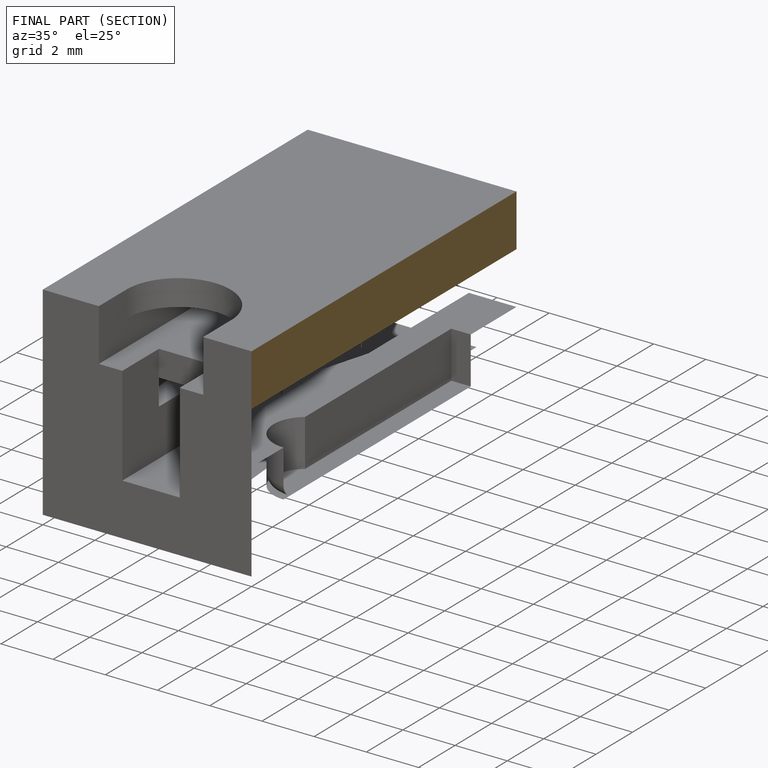
[diagram: finished part — half-section view (interior)]
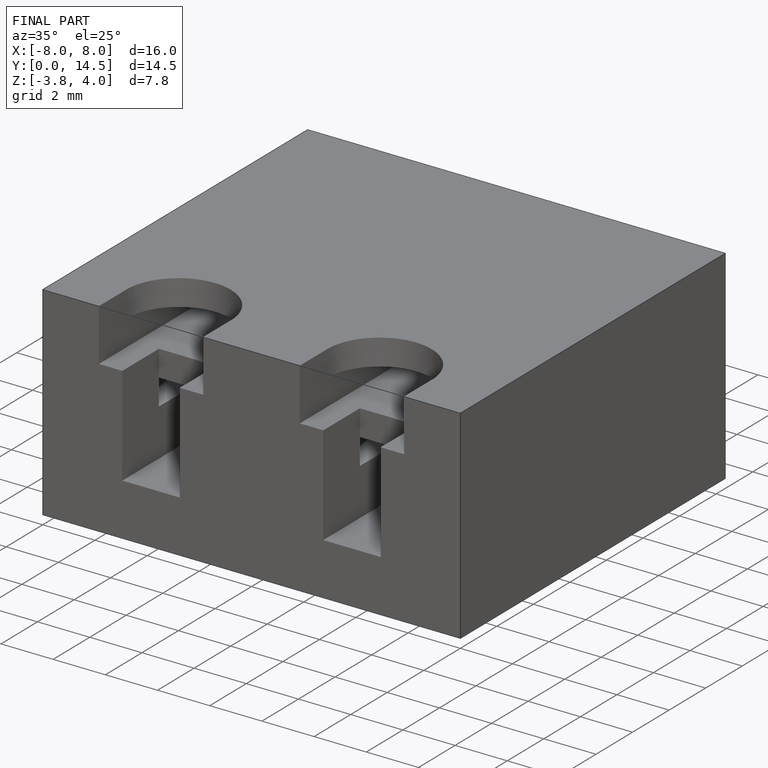
[diagram: finished part — iso view with bounding-box wireframe]
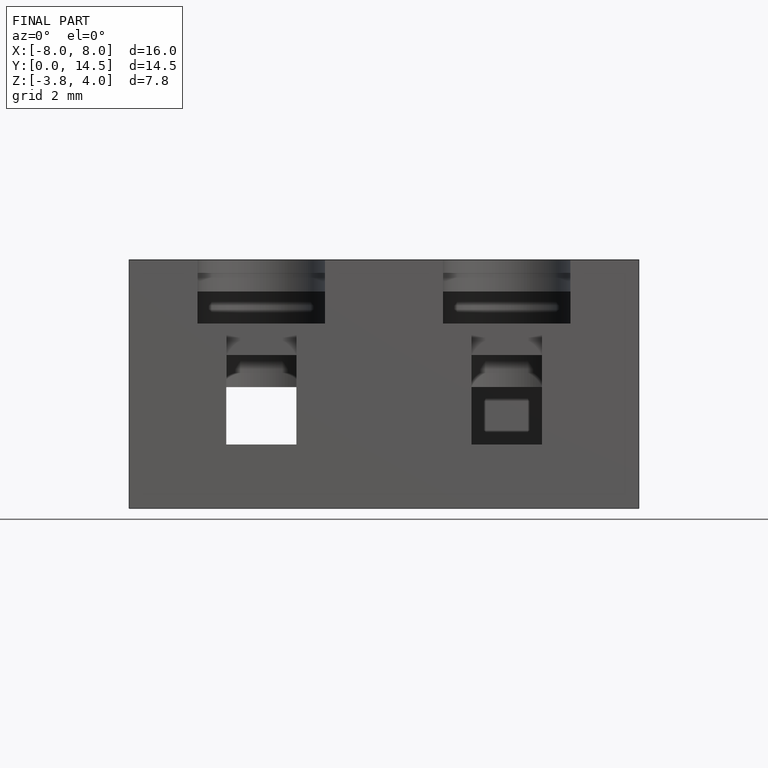
[diagram: finished part — front view with bounding-box wireframe]
